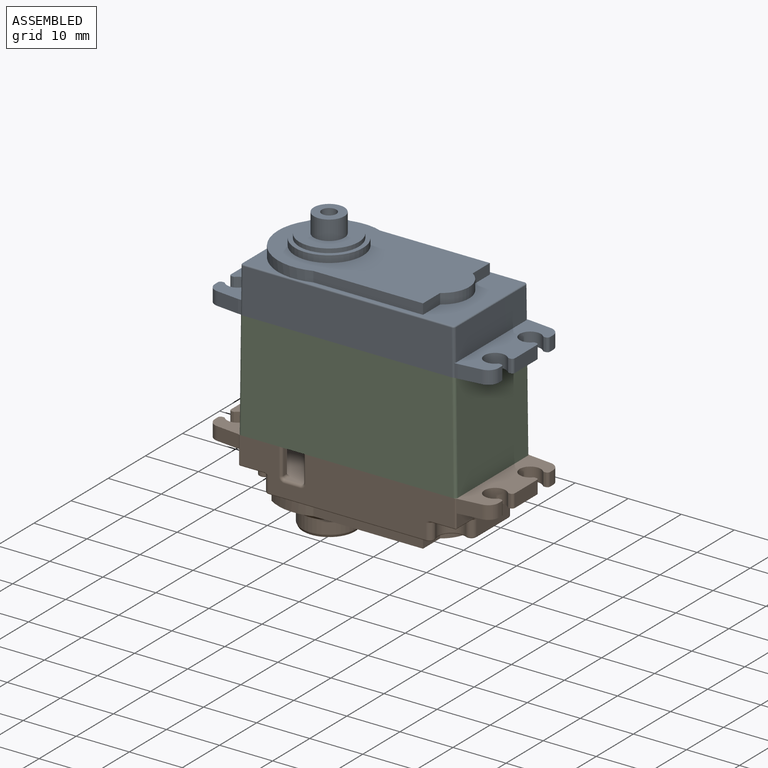
[diagram: assembled view]
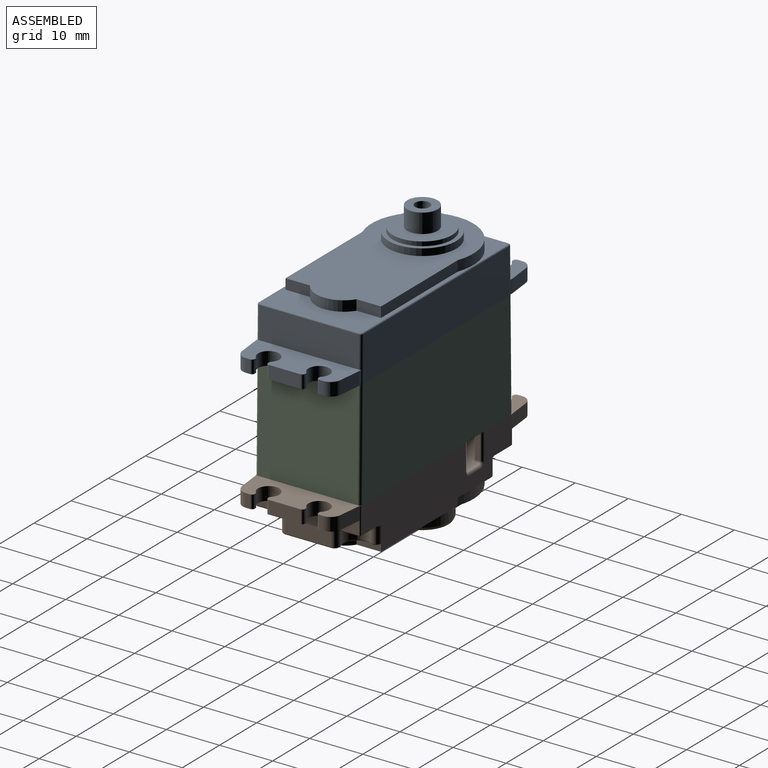
[diagram: assembled view, second angle]
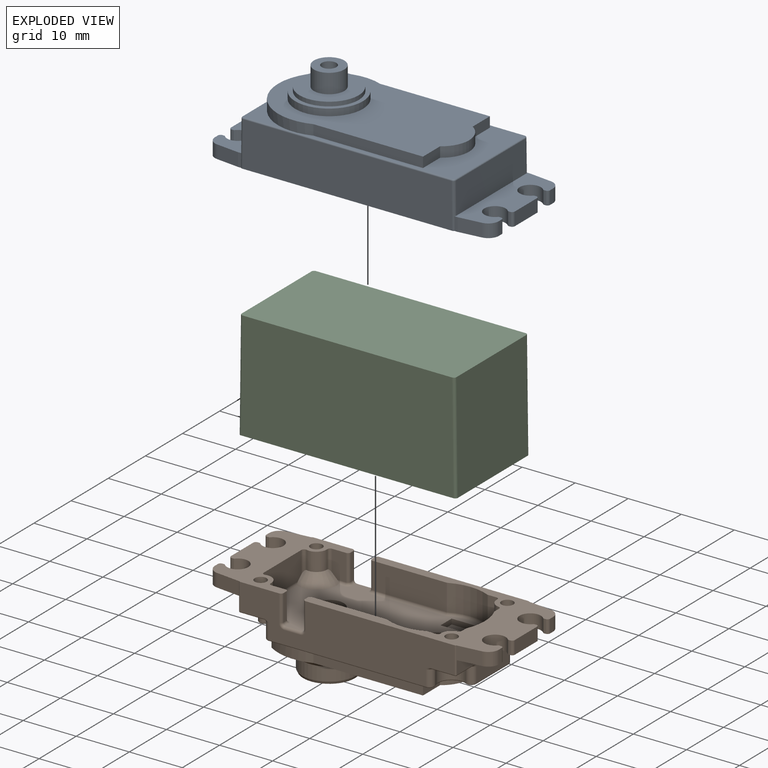
[diagram: exploded view]
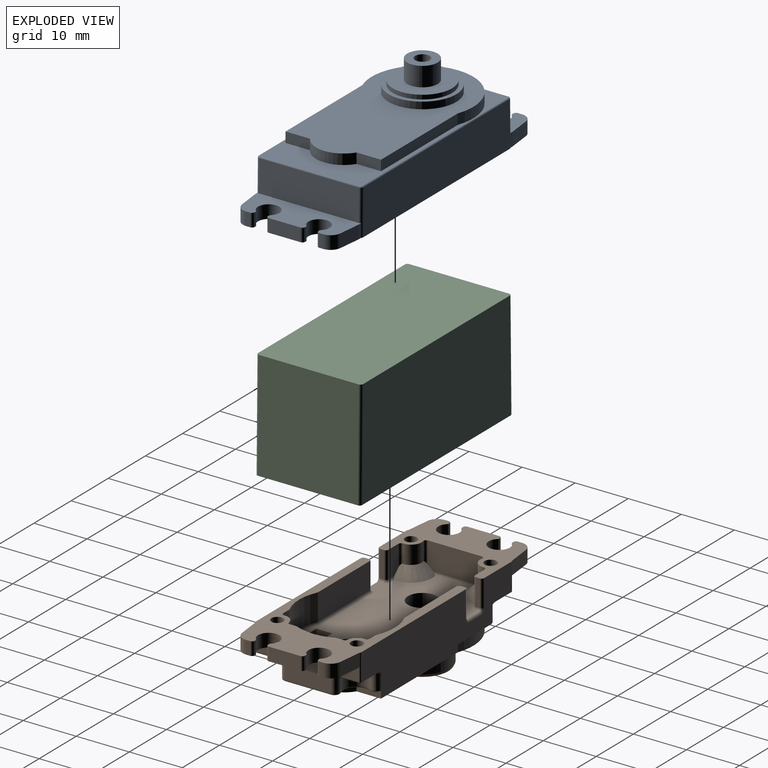
[diagram: exploded view, second angle]
ASSEMBLY  parts=3 mates=2
PART A: 83 faces, bbox 53.5x19.8x16.4 mm
  f0: plane 39.81x19.32mm, normal (0,0,1), area 173.8mm2, adj f54,f55,f56,f57,f58,f59,f73,f74
  f1: plane 18.8x5.95mm, normal (1,0,0.01), area 111.9mm2, adj f32,f69,f71,f79
  f2: plane 18.8x5.96mm, normal (-1,0,0.01), area 111.9mm2, adj f27,f70,f72,f74,f76,f78
  f3: plane 53.5x19.8mm, normal (0,0,-1), area 987.2mm2, adj f4,f5,f6,f7,f8,f9,f10,f11
  f4: plane 39.5x8.45mm, normal (0,-1,0), area 332.9mm2, adj f3,f71,f72,f75
  f5: plane 39.5x8.45mm, normal (0,1,0), area 332.9mm2, adj f3,f69,f70,f82
  f6: plane 4.28x2.5mm, normal (-0.11,-0.99,0), area 10.8mm2, adj f3,f7,f27,f28
  f7: cylinder r=2mm len=2.5mm, axis (0,0,-1), area 7.3mm2, adj f3,f6,f8,f27
  f8: plane 2.5x0.78mm, normal (-1,0,0), area 1.9mm2, adj f3,f7,f9,f27
  f9: cylinder r=0.5mm len=2.5mm, axis (0,0,-1), area 2mm2, adj f3,f8,f10,f27
  f10: plane 2.5x0.32mm, normal (0,1,0), area 0.8mm2, adj f3,f9,f11,f27
  f11: cylinder r=0.25mm len=2.5mm, axis (0,0,-1), area 0.5mm2, adj f3,f10,f12,f27
  f12: cylinder r=2mm len=4mm, axis (0,0,-1), area 24.1mm2, adj f3,f11,f13,f27
  f13: cylinder r=0.25mm len=2.5mm, axis (0,0,-1), area 0.5mm2, adj f3,f12,f14,f27
  f14: plane 2.5x0.32mm, normal (0,-1,0), area 0.8mm2, adj f3,f13,f15,f27
  f15: cylinder r=0.5mm len=2.5mm, axis (0,0,-1), area 2mm2, adj f3,f14,f16,f27
  f16: plane 6x2.5mm, normal (-1,0,0), area 15mm2, adj f3,f15,f17,f27
  f17: cylinder r=0.5mm len=2.5mm, axis (0,0,-1), area 2mm2, adj f3,f16,f18,f27
  f18: plane 2.5x0.32mm, normal (0,1,0), area 0.8mm2, adj f3,f17,f19,f27
  f19: cylinder r=0.25mm len=2.5mm, axis (0,0,-1), area 0.5mm2, adj f3,f18,f20,f27
  f20: cylinder r=2mm len=4mm, axis (0,0,-1), area 24.1mm2, adj f3,f19,f21,f27
  f21: cylinder r=0.25mm len=2.5mm, axis (0,0,-1), area 0.5mm2, adj f3,f20,f22,f27
  f22: plane 2.5x0.32mm, normal (0,-1,0), area 0.8mm2, adj f3,f21,f23,f27
  f23: cylinder r=0.5mm len=2.5mm, axis (0,0,-1), area 2mm2, adj f3,f22,f24,f27
  f24: plane 2.5x0.78mm, normal (-1,0,0), area 1.9mm2, adj f3,f23,f25,f27
  f25: cylinder r=2mm len=2.5mm, axis (0,0,-1), area 7.3mm2, adj f3,f24,f26,f27
  f26: plane 4.28x2.5mm, normal (-0.11,0.99,0), area 10.8mm2, adj f3,f25,f27,f29
  f27: plane 19.5x6.67mm, normal (0,0,1), area 93.3mm2, adj f2,f6,f7,f8,f9,f10,f11,f12
  f28: plane 2.5x0.62mm, normal (0,-1,0), area 1.5mm2, adj f3,f6,f27,f72
  f29: plane 2.5x0.62mm, normal (0,1,0), area 1.5mm2, adj f3,f26,f27,f70
  f30: plane 2.5x0.62mm, normal (0,1,0), area 1.5mm2, adj f3,f32,f49,f69
  f31: plane 2.5x0.62mm, normal (0,-1,0), area 1.5mm2, adj f3,f32,f50,f71
  f32: plane 19.5x6.67mm, normal (0,0,1), area 93.3mm2, adj f1,f30,f31,f33,f34,f35,f36,f37
  f33: plane 2.5x0.32mm, normal (0,1,0), area 0.8mm2, adj f3,f32,f34,f53
  f34: cylinder r=0.25mm len=2.5mm, axis (0,0,-1), area 0.5mm2, adj f3,f32,f33,f35
  f35: cylinder r=2mm len=4mm, axis (0,0,-1), area 24.1mm2, adj f3,f32,f34,f36
  f36: cylinder r=0.25mm len=2.5mm, axis (0,0,-1), area 0.5mm2, adj f3,f32,f35,f37
  f37: plane 2.5x0.32mm, normal (0,-1,0), area 0.8mm2, adj f3,f32,f36,f38
  f38: cylinder r=0.5mm len=2.5mm, axis (0,0,-1), area 2mm2, adj f3,f32,f37,f39
  f39: plane 6x2.5mm, normal (1,0,0), area 15mm2, adj f3,f32,f38,f40
  f40: cylinder r=0.5mm len=2.5mm, axis (0,0,-1), area 2mm2, adj f3,f32,f39,f41
  f41: plane 2.5x0.32mm, normal (0,1,0), area 0.8mm2, adj f3,f32,f40,f42
  f42: cylinder r=0.25mm len=2.5mm, axis (0,0,-1), area 0.5mm2, adj f3,f32,f41,f43
  f43: cylinder r=2mm len=4mm, axis (0,0,-1), area 24.1mm2, adj f3,f32,f42,f44
  f44: cylinder r=0.25mm len=2.5mm, axis (0,0,-1), area 0.5mm2, adj f3,f32,f43,f45
  f45: plane 2.5x0.32mm, normal (0,-1,0), area 0.8mm2, adj f3,f32,f44,f46
  f46: cylinder r=0.5mm len=2.5mm, axis (0,0,-1), area 2mm2, adj f3,f32,f45,f47
  f47: plane 2.5x0.78mm, normal (1,0,0), area 1.9mm2, adj f3,f32,f46,f48
  f48: cylinder r=2mm len=2.5mm, axis (0,0,-1), area 7.3mm2, adj f3,f32,f47,f49
  f49: plane 4.28x2.5mm, normal (0.11,0.99,0), area 10.8mm2, adj f3,f30,f32,f48
  f50: plane 4.28x2.5mm, normal (0.11,-0.99,0), area 10.8mm2, adj f3,f31,f32,f51
  f51: cylinder r=2mm len=2.5mm, axis (0,0,-1), area 7.3mm2, adj f3,f32,f50,f52
  f52: plane 2.5x0.78mm, normal (1,0,0), area 1.9mm2, adj f3,f32,f51,f53
  f53: cylinder r=0.5mm len=2.5mm, axis (0,0,-1), area 2mm2, adj f3,f32,f33,f52
  f54: plane 4.62x1.95mm, normal (1,0,0), area 9mm2, adj f0,f55,f59,f60
  f55: cylinder r=5.2mm len=8.76mm, axis (0,0,-1), area 20.3mm2, adj f0,f54,f56,f60
  f56: plane 4.62x1.95mm, normal (1,0,0), area 9mm2, adj f0,f55,f57,f60
  f57: plane 20.66x1.95mm, normal (0,1,0), area 40.3mm2, adj f0,f56,f58,f60
  f58: cylinder r=9.6mm len=19.2mm, axis (0,0,-1), area 72.1mm2, adj f0,f57,f59,f60,f76
  f59: plane 20.66x1.95mm, normal (0,-1,0), area 40.3mm2, adj f0,f54,f58,f60
  f60: plane 36x19.2mm, normal (0,0,1), area 465.6mm2, adj f54,f55,f56,f57,f58,f59,f61
  f61: cylinder r=6.4mm len=12.8mm, axis (0,0,-1), area 52.3mm2, adj f60,f62
  f62: plane 12.8x12.8mm, normal (0,0,1), area 30.2mm2, adj f61,f63
  f63: cylinder r=5.6mm len=11.2mm, axis (0,0,-1), area 28.1mm2, adj f62,f64
  f64: plane 11.2x11.2mm, normal (0,0,1), area 72.6mm2, adj f63,f65
  f65: cylinder r=2.88mm len=5.75mm, axis (0,0,-1), area 65.9mm2, adj f64,f66
  f66: plane 5.75x5.75mm, normal (0,0,1), area 20mm2, adj f65,f67
  f67: cylinder r=1.38mm len=5.75mm, axis (0,0,-1), area 49.7mm2, adj f66,f68
  f68: plane 2.75x2.75mm, normal (0,0,1), area 5.9mm2, adj f67
  f69: cylinder r=0.5mm len=8.46mm, axis (-0.01,0,1), area 5.7mm2, adj f1,f3,f5,f30,f32,f81
  f70: cylinder r=0.5mm len=8.46mm, axis (-0.01,0,-1), area 5.7mm2, adj f2,f3,f5,f27,f29,f80
  f71: cylinder r=0.5mm len=8.46mm, axis (0.01,0,-1), area 5.7mm2, adj f1,f3,f4,f31,f32,f77
  f72: cylinder r=0.5mm len=8.46mm, axis (0.01,0,1), area 5.7mm2, adj f2,f3,f4,f27,f28,f73
  f73: bspline ~0.5x0.5mm, area 0.3mm2, adj f0,f72,f74,f75
  f74: cylinder r=0.25mm len=8.39mm, axis (0,1,0), area 3.3mm2, adj f0,f2,f73,f76
  f75: cylinder r=0.25mm len=39.29mm, axis (1,0,0), area 15.4mm2, adj f0,f4,f73,f77
  f76: bspline ~2.02x0.25mm, area 0.7mm2, adj f2,f58,f74,f78
  f77: bspline ~0.5x0.5mm, area 0.3mm2, adj f0,f71,f75,f79
  f78: cylinder r=0.25mm len=8.39mm, axis (0,1,0), area 3.3mm2, adj f0,f2,f76,f80
  f79: cylinder r=0.25mm len=18.8mm, axis (0,1,0), area 7.3mm2, adj f0,f1,f77,f81
  f80: bspline ~0.5x0.5mm, area 0.3mm2, adj f0,f70,f78,f82
  f81: bspline ~0.5x0.5mm, area 0.3mm2, adj f0,f69,f79,f82
  f82: cylinder r=0.25mm len=39.29mm, axis (-1,0,0), area 15.4mm2, adj f0,f5,f80,f81
PART B: 232 faces, bbox 53.7x21.1x16.5 mm
  f0: plane 40.72x8.67mm, normal (0,-1,0), area 275.9mm2, adj f12,f16,f138,f140,f142,f143,f144,f168
  f1: plane 40.72x8.67mm, normal (0,1,0), area 275.9mm2, adj f12,f16,f119,f121,f123,f124,f125,f167
  f2: plane 35.79x19.3mm, normal (0,0,-1), area 101.7mm2, adj f5,f18,f19,f20,f21,f22,f23,f175
  f3: plane 19.52x6.17mm, normal (-1,0,0), area 79.1mm2, adj f52,f171,f172,f190,f193,f194,f196,f202
  f4: plane 19.52x6.17mm, normal (1,0,0), area 79.1mm2, adj f47,f173,f174,f181,f211,f212,f214,f220
  f5: cylinder r=9.6mm len=8.55mm, axis (0,0,1), area 17.4mm2, adj f2,f7,f19,f159,f187
  f6: cylinder r=9.6mm len=10.11mm, axis (0,0,1), area 20.8mm2, adj f7,f17,f159,f161,f188,f192
  f7: plane 36x19.2mm, normal (0,0,-1), area 436.5mm2, adj f5,f6,f18,f19,f20,f21,f22,f23
  f8: cylinder r=1.12mm len=5.3mm, axis (0,0,-1), area 37.5mm2, adj f12,f165
  f9: cylinder r=1.12mm len=5.3mm, axis (0,0,-1), area 37.5mm2, adj f12,f164
  f10: cylinder r=1.12mm len=5.3mm, axis (0,0,-1), area 37.5mm2, adj f16,f162
  f11: cylinder r=1.12mm len=5.3mm, axis (0,0,-1), area 37.5mm2, adj f16,f160
  f12: plane 35.1x19.8mm, normal (0,0,1), area 215.6mm2, adj f0,f1,f8,f9,f28,f29,f30,f31
  f13: plane 5.03x2.69mm, normal (0,-1,0), area 12.8mm2, adj f16,f106,f112,f113,f145
  f14: plane 5.03x2.69mm, normal (0,1,0), area 12.8mm2, adj f16,f103,f135,f136,f155
  f15: plane 37.13x18.8mm, normal (0,0,1), area 449.4mm2, adj f86,f88,f89,f90,f91,f93,f94,f95
  f16: plane 19.8x14.4mm, normal (0,0,1), area 145.5mm2, adj f0,f1,f10,f11,f13,f14,f50,f51
  f17: plane 10.18x1.6mm, normal (0,0,-1), area 7.4mm2, adj f6,f188,f189,f190,f191,f192
  f18: plane 4.62x1.95mm, normal (1,0,0), area 9mm2, adj f2,f7,f19,f23
  f19: plane 20.66x1.95mm, normal (0,-1,0), area 40.3mm2, adj f2,f5,f7,f18
  f20: cylinder r=9.6mm len=8.55mm, axis (0,0,1), area 17.4mm2, adj f2,f7,f21,f161,f175
  f21: plane 20.66x1.95mm, normal (0,1,0), area 40.3mm2, adj f2,f7,f20,f22
  f22: plane 4.62x1.95mm, normal (1,0,0), area 9mm2, adj f2,f7,f21,f23
  f23: cylinder r=5.2mm len=8.76mm, axis (0,0,1), area 20.3mm2, adj f2,f7,f18,f22
  f24: cylinder r=6.4mm len=12.8mm, axis (0,0,1), area 32.2mm2, adj f25,f231
  f25: plane 12.8x12.8mm, normal (0,0,-1), area 1mm2, adj f24,f230
  f26: cylinder r=5.12mm len=10.25mm, axis (0,0,1), area 82.1mm2, adj f229,f230
  f27: plane 9.75x9.75mm, normal (0,0,-1), area 50.9mm2, adj f98,f229
  f28: cylinder r=2mm len=2.5mm, axis (0,0,1), area 7.3mm2, adj f12,f29,f47,f48
  f29: plane 2.5x0.78mm, normal (1,0,0), area 1.9mm2, adj f12,f28,f30,f47
  f30: cylinder r=0.5mm len=2.5mm, axis (0,0,1), area 2mm2, adj f12,f29,f31,f47
  f31: plane 2.5x0.32mm, normal (0,1,0), area 0.8mm2, adj f12,f30,f32,f47
  f32: cylinder r=0.25mm len=2.5mm, axis (0,0,1), area 0.5mm2, adj f12,f31,f33,f47
  f33: cylinder r=2mm len=4mm, axis (0,0,1), area 24.1mm2, adj f12,f32,f34,f47
  f34: cylinder r=0.25mm len=2.5mm, axis (0,0,1), area 0.5mm2, adj f12,f33,f35,f47
  f35: plane 2.5x0.32mm, normal (0,-1,0), area 0.8mm2, adj f12,f34,f36,f47
  f36: cylinder r=0.5mm len=2.5mm, axis (0,0,1), area 2mm2, adj f12,f35,f37,f47
  f37: plane 6x2.5mm, normal (1,0,0), area 15mm2, adj f12,f36,f38,f47
  f38: cylinder r=0.5mm len=2.5mm, axis (0,0,1), area 2mm2, adj f12,f37,f39,f47
  f39: plane 2.5x0.32mm, normal (0,1,0), area 0.8mm2, adj f12,f38,f40,f47
  f40: cylinder r=0.25mm len=2.5mm, axis (0,0,1), area 0.5mm2, adj f12,f39,f41,f47
  f41: cylinder r=2mm len=4mm, axis (0,0,1), area 24.1mm2, adj f12,f40,f42,f47
  f42: cylinder r=0.25mm len=2.5mm, axis (0,0,1), area 0.5mm2, adj f12,f41,f43,f47
  f43: plane 2.5x0.32mm, normal (0,-1,0), area 0.8mm2, adj f12,f42,f44,f47
  f44: cylinder r=0.5mm len=2.5mm, axis (0,0,1), area 2mm2, adj f12,f43,f45,f47
  f45: plane 2.5x0.78mm, normal (1,0,0), area 1.9mm2, adj f12,f44,f46,f47
  f46: cylinder r=2mm len=2.5mm, axis (0,0,1), area 7.3mm2, adj f12,f45,f47,f49
  f47: plane 19.55x6.28mm, normal (0,0,-1), area 87.8mm2, adj f4,f28,f29,f30,f31,f32,f33,f34
  f48: plane 4.51x2.5mm, normal (0.11,-0.99,0), area 11.3mm2, adj f12,f28,f47,f211
  f49: plane 4.51x2.5mm, normal (0.11,0.99,0), area 11.3mm2, adj f12,f46,f47,f220
  f50: plane 4.51x2.5mm, normal (-0.11,-0.99,0), area 11.3mm2, adj f16,f52,f53,f202
  f51: plane 4.51x2.5mm, normal (-0.11,0.99,0), area 11.3mm2, adj f16,f52,f71,f193
  f52: plane 19.55x6.28mm, normal (0,0,-1), area 87.8mm2, adj f3,f50,f51,f53,f54,f55,f56,f57
  f53: cylinder r=2mm len=2.5mm, axis (0,0,1), area 7.3mm2, adj f16,f50,f52,f54
  f54: plane 2.5x0.78mm, normal (-1,0,0), area 1.9mm2, adj f16,f52,f53,f55
  f55: cylinder r=0.5mm len=2.5mm, axis (0,0,1), area 2mm2, adj f16,f52,f54,f56
  f56: plane 2.5x0.32mm, normal (0,1,0), area 0.8mm2, adj f16,f52,f55,f57
  f57: cylinder r=0.25mm len=2.5mm, axis (0,0,1), area 0.5mm2, adj f16,f52,f56,f58
  f58: cylinder r=2mm len=4mm, axis (0,0,1), area 24.1mm2, adj f16,f52,f57,f59
  f59: cylinder r=0.25mm len=2.5mm, axis (0,0,1), area 0.5mm2, adj f16,f52,f58,f60
  f60: plane 2.5x0.32mm, normal (0,-1,0), area 0.8mm2, adj f16,f52,f59,f61
  f61: cylinder r=0.5mm len=2.5mm, axis (0,0,1), area 2mm2, adj f16,f52,f60,f62
  f62: plane 6x2.5mm, normal (-1,0,0), area 15mm2, adj f16,f52,f61,f63
  f63: cylinder r=0.5mm len=2.5mm, axis (0,0,1), area 2mm2, adj f16,f52,f62,f64
  f64: plane 2.5x0.32mm, normal (0,1,0), area 0.8mm2, adj f16,f52,f63,f65
  f65: cylinder r=0.25mm len=2.5mm, axis (0,0,1), area 0.5mm2, adj f16,f52,f64,f66
  f66: cylinder r=2mm len=4mm, axis (0,0,1), area 24.1mm2, adj f16,f52,f65,f67
  f67: cylinder r=0.25mm len=2.5mm, axis (0,0,1), area 0.5mm2, adj f16,f52,f66,f68
  f68: plane 2.5x0.32mm, normal (0,-1,0), area 0.8mm2, adj f16,f52,f67,f69
  f69: cylinder r=0.5mm len=2.5mm, axis (0,0,1), area 2mm2, adj f16,f52,f68,f70
  f70: plane 2.5x0.78mm, normal (-1,0,0), area 1.9mm2, adj f16,f52,f69,f71
  f71: cylinder r=2mm len=2.5mm, axis (0,0,1), area 7.3mm2, adj f16,f51,f52,f70
  f72: cylinder r=2mm len=3.45mm, axis (0,0,1), area 10.4mm2, adj f12,f105,f146,f147
  f73: plane 5.03x1.61mm, normal (0,-1,0), area 7.4mm2, adj f12,f105,f107,f108,f147
  f74: cylinder r=9mm len=7.44mm, axis (0,0,1), area 38.4mm2, adj f12,f107,f110,f111
  f75: plane 13.92x5mm, normal (0,-1,0), area 69.6mm2, adj f12,f110,f116,f117
  f76: cylinder r=2mm len=3.45mm, axis (0,0,1), area 13mm2, adj f16,f106,f145,f152
  f77: plane 10.21x5.05mm, normal (1,0,0), area 50mm2, adj f16,f103,f106,f152,f153,f154
  f78: cylinder r=2mm len=3.45mm, axis (0,0,1), area 13mm2, adj f16,f103,f154,f155
  f79: plane 13.92x5mm, normal (0,1,0), area 69.6mm2, adj f12,f130,f132,f133
  f80: cylinder r=9mm len=7.44mm, axis (0,0,1), area 38.4mm2, adj f12,f127,f129,f130
  f81: plane 5.03x1.61mm, normal (0,1,0), area 7.4mm2, adj f12,f104,f126,f127,f150
  f82: cylinder r=2mm len=3.45mm, axis (0,0,1), area 10.4mm2, adj f12,f104,f150,f151
  f83: plane 5.05x1.16mm, normal (-1,0,0), area 5.2mm2, adj f12,f104,f148,f151,f158
  f84: cylinder r=9mm len=7.34mm, axis (0,0,1), area 37.8mm2, adj f12,f148,f149,f157
  f85: plane 5.05x1.16mm, normal (-1,0,0), area 5.2mm2, adj f12,f105,f146,f149,f156
  f86: cylinder r=2.5mm len=5mm, axis (0,0,1), area 15.7mm2, adj f15,f87
  f87: plane 5x5mm, normal (0,0,1), area 19.6mm2, adj f86
  f88: plane 5x1mm, normal (0,-1,0), area 5mm2, adj f15,f89,f91,f92
  f89: plane 3x1mm, normal (1,0,0), area 3mm2, adj f15,f88,f90,f92
  f90: plane 5x1mm, normal (0,1,0), area 5mm2, adj f15,f89,f91,f92
  f91: plane 3x1mm, normal (-1,0,0), area 3mm2, adj f15,f88,f90,f92
  f92: plane 5x3mm, normal (0,0,1), area 15mm2, adj f88,f89,f90,f91
  f93: plane 5x1mm, normal (0,-1,0), area 5mm2, adj f15,f94,f96,f97
  f94: plane 3x1mm, normal (1,0,0), area 3mm2, adj f15,f93,f95,f97
  f95: plane 5x1mm, normal (0,1,0), area 5mm2, adj f15,f94,f96,f97
  f96: plane 3x1mm, normal (-1,0,0), area 3mm2, adj f15,f93,f95,f97
  f97: plane 5x3mm, normal (0,0,1), area 15mm2, adj f93,f94,f95,f96
  f98: cylinder r=2.75mm len=10.75mm, axis (0,0,1), area 185.7mm2, adj f15,f27
  f99: plane 5x0.75mm, normal (-1,0,0), area 3.8mm2, adj f12,f133,f137,f138
  f100: plane 5x0.75mm, normal (1,0,0), area 3.8mm2, adj f16,f135,f141,f144
  f101: plane 5x0.75mm, normal (1,0,0), area 3.8mm2, adj f16,f113,f118,f119
  f102: plane 5x0.75mm, normal (-1,0,0), area 3.8mm2, adj f12,f116,f122,f125
  f103: cone r=2mm half-angle=45deg, axis (0,0,-1), area 18.5mm2, adj f14,f15,f77,f78,f136,f153,f154,f155
  f104: cone r=2mm half-angle=45deg, axis (0,0,-1), area 15.8mm2, adj f15,f81,f82,f83,f126,f150,f151,f157
  f105: cone r=2mm half-angle=45deg, axis (0,0,-1), area 15.8mm2, adj f15,f72,f73,f85,f108,f146,f147,f156
  f106: cone r=2mm half-angle=45deg, axis (0,0,-1), area 18.5mm2, adj f13,f15,f76,f77,f112,f145,f152,f153
  f107: cylinder r=0.5mm len=5mm, axis (0,0,1), area 1.1mm2, adj f12,f73,f74,f109
  f108: cylinder r=0.5mm len=0.58mm, axis (-1,0,0), area 0.2mm2, adj f15,f73,f105,f109
  f109: torus R=1mm, axis (0,0,1), area 0.2mm2, adj f15,f107,f108,f111
  f110: cylinder r=0.5mm len=5mm, axis (0,0,1), area 1.1mm2, adj f12,f74,f75,f114
  f111: torus R=8.5mm, axis (0,0,1), area 5.9mm2, adj f15,f74,f109,f114
  f112: cylinder r=0.5mm len=1.66mm, axis (-1,0,0), area 1.1mm2, adj f13,f15,f106,f115
  f113: cylinder r=0.5mm len=5mm, axis (0,0,1), area 3.9mm2, adj f13,f16,f101,f115
  f114: torus R=1mm, axis (0,0,1), area 0.2mm2, adj f15,f110,f111,f117
  f115: torus R=1mm, axis (0,0,1), area 0.8mm2, adj f15,f112,f113,f118
  f116: cylinder r=0.5mm len=5mm, axis (0,0,-1), area 3.9mm2, adj f12,f75,f102,f120
  f117: cylinder r=0.5mm len=13.92mm, axis (-1,0,0), area 10.9mm2, adj f15,f75,f114,f120
  f118: cylinder r=0.5mm len=0.75mm, axis (0,-1,0), area 0.6mm2, adj f15,f101,f115,f121
  f119: cylinder r=0.5mm len=5mm, axis (0,0,1), area 3.9mm2, adj f1,f16,f101,f121
  f120: torus R=1mm, axis (0,0,1), area 0.8mm2, adj f15,f116,f117,f122
  f121: torus R=1mm, axis (0,-1,0), area 0.8mm2, adj f1,f118,f119,f123
  f122: cylinder r=0.5mm len=0.75mm, axis (0,-1,0), area 0.6mm2, adj f15,f102,f120,f124
  f123: cylinder r=0.5mm len=3mm, axis (1,0,0), area 2.4mm2, adj f1,f15,f121,f124
  f124: torus R=1mm, axis (0,-1,0), area 0.8mm2, adj f1,f122,f123,f125
  f125: cylinder r=0.5mm len=5mm, axis (0,0,-1), area 3.9mm2, adj f1,f12,f102,f124
  f126: cylinder r=0.5mm len=0.58mm, axis (1,0,0), area 0.2mm2, adj f15,f81,f104,f128
  f127: cylinder r=0.5mm len=5mm, axis (0,0,1), area 1.1mm2, adj f12,f80,f81,f128
  f128: torus R=1mm, axis (0,0,1), area 0.2mm2, adj f15,f126,f127,f129
  f129: torus R=8.5mm, axis (0,0,1), area 5.9mm2, adj f15,f80,f128,f131
  f130: cylinder r=0.5mm len=5mm, axis (0,0,1), area 1.1mm2, adj f12,f79,f80,f131
  f131: torus R=1mm, axis (0,0,1), area 0.2mm2, adj f15,f129,f130,f132
  f132: cylinder r=0.5mm len=13.92mm, axis (1,0,0), area 10.9mm2, adj f15,f79,f131,f134
  f133: cylinder r=0.5mm len=5mm, axis (0,0,1), area 3.9mm2, adj f12,f79,f99,f134
  f134: torus R=1mm, axis (0,0,1), area 0.8mm2, adj f15,f132,f133,f137
  f135: cylinder r=0.5mm len=5mm, axis (0,0,-1), area 3.9mm2, adj f14,f16,f100,f139
  f136: cylinder r=0.5mm len=1.66mm, axis (1,0,0), area 1.1mm2, adj f14,f15,f103,f139
  f137: cylinder r=0.5mm len=0.75mm, axis (0,-1,0), area 0.6mm2, adj f15,f99,f134,f140
  f138: cylinder r=0.5mm len=5mm, axis (0,0,1), area 3.9mm2, adj f0,f12,f99,f140
  f139: torus R=1mm, axis (0,0,1), area 0.8mm2, adj f15,f135,f136,f141
  f140: torus R=1mm, axis (0,-1,0), area 0.8mm2, adj f0,f137,f138,f142
  f141: cylinder r=0.5mm len=0.75mm, axis (0,-1,0), area 0.6mm2, adj f15,f100,f139,f143
  f142: cylinder r=0.5mm len=3mm, axis (-1,0,0), area 2.4mm2, adj f0,f15,f140,f143
  f143: torus R=1mm, axis (0,-1,0), area 0.8mm2, adj f0,f141,f142,f144
  f144: cylinder r=0.5mm len=5mm, axis (0,0,-1), area 3.9mm2, adj f0,f16,f100,f143
  f145: cylinder r=0.5mm len=4.03mm, axis (0,0,1), area 3mm2, adj f13,f16,f76,f106
  f146: cylinder r=0.5mm len=3.94mm, axis (0,0,1), area 2.7mm2, adj f12,f72,f85,f105
  f147: cylinder r=0.5mm len=4.03mm, axis (0,0,1), area 3mm2, adj f12,f72,f73,f105
  f148: cylinder r=0.5mm len=5mm, axis (0,0,1), area 1mm2, adj f12,f83,f84,f158
  f149: cylinder r=0.5mm len=5mm, axis (0,0,1), area 1mm2, adj f12,f84,f85,f156
  f150: cylinder r=0.5mm len=4.03mm, axis (0,0,1), area 3mm2, adj f12,f81,f82,f104
  f151: cylinder r=0.5mm len=3.94mm, axis (0,0,1), area 2.7mm2, adj f12,f82,f83,f104
  f152: cylinder r=0.5mm len=4.12mm, axis (0,0,1), area 3.5mm2, adj f16,f76,f77,f106
  f153: cylinder r=0.5mm len=8.27mm, axis (0,-1,0), area 6mm2, adj f15,f77,f103,f106
  f154: cylinder r=0.5mm len=4.12mm, axis (0,0,1), area 3.5mm2, adj f16,f77,f78,f103
  f155: cylinder r=0.5mm len=4.03mm, axis (0,0,1), area 3mm2, adj f14,f16,f78,f103
  f156: torus R=1mm, axis (0,0,1), area 0.1mm2, adj f85,f105,f149,f157
  f157: torus R=8.5mm, axis (0,0,1), area 5.8mm2, adj f15,f84,f104,f105,f156,f158
  f158: torus R=1mm, axis (0,0,1), area 0.1mm2, adj f83,f104,f148,f157
  f159: cylinder r=2.5mm len=5.1mm, axis (0,0,-1), area 28.6mm2, adj f5,f6,f7,f169,f172,f187,f192,f209
  f160: plane 4.5x4.4mm, normal (0,0,-1), area 14mm2, adj f11,f203,f206,f207,f209,f210
  f161: cylinder r=2.5mm len=5.1mm, axis (0,0,-1), area 28.6mm2, adj f6,f7,f20,f170,f171,f175,f188,f200
  f162: plane 4.5x4.4mm, normal (0,0,-1), area 14mm2, adj f10,f194,f197,f198,f200,f201
  f163: cylinder r=2.5mm len=3.57mm, axis (0,0,-1), area 17.6mm2, adj f167,f173,f179,f227
  f164: plane 4.5x4.4mm, normal (0,0,-1), area 14mm2, adj f9,f221,f224,f225,f227,f228
  f165: plane 4.5x4.4mm, normal (0,0,-1), area 14mm2, adj f8,f212,f215,f216,f218,f219
  f166: cylinder r=2.5mm len=3.57mm, axis (0,0,-1), area 17.6mm2, adj f168,f174,f183,f218
  f167: cylinder r=1mm len=2.9mm, axis (0,0,-1), area 5.7mm2, adj f1,f163,f178,f225
  f168: cylinder r=1mm len=2.9mm, axis (0,0,-1), area 5.7mm2, adj f0,f166,f184,f219
  f169: cylinder r=1mm len=2.9mm, axis (0,0,-1), area 5.7mm2, adj f0,f159,f186,f207
  f170: cylinder r=1mm len=2.9mm, axis (0,0,-1), area 5.7mm2, adj f1,f161,f176,f201
  f171: cylinder r=1mm len=2.9mm, axis (0,0,-1), area 5.8mm2, adj f3,f161,f189,f198
  f172: cylinder r=1mm len=2.9mm, axis (0,0,-1), area 5.8mm2, adj f3,f159,f191,f210
  f173: cylinder r=1mm len=2.9mm, axis (0,0,-1), area 5.8mm2, adj f4,f163,f180,f228
  f174: cylinder r=1mm len=2.9mm, axis (0,0,-1), area 5.8mm2, adj f4,f166,f182,f216
  f175: torus R=2.75mm, axis (0,0,1), area 0.2mm2, adj f2,f20,f161,f176
  f176: torus R=0.75mm, axis (0,0,1), area 0.7mm2, adj f2,f170,f175,f177
  f177: cylinder r=0.25mm len=29.58mm, axis (1,0,0), area 11.6mm2, adj f1,f2,f176,f178
  f178: torus R=0.75mm, axis (0,0,1), area 0.7mm2, adj f2,f167,f177,f179
  f179: torus R=2.75mm, axis (0,0,1), area 2.5mm2, adj f2,f163,f178,f180
  f180: torus R=0.75mm, axis (0,0,1), area 0.7mm2, adj f2,f173,f179,f181
  f181: cylinder r=0.25mm len=8.68mm, axis (0,1,0), area 3.4mm2, adj f2,f4,f180,f182
  f182: torus R=0.75mm, axis (0,0,1), area 0.7mm2, adj f2,f174,f181,f183
  f183: torus R=2.75mm, axis (0,0,1), area 2.5mm2, adj f2,f166,f182,f184
  f184: torus R=0.75mm, axis (0,0,1), area 0.7mm2, adj f2,f168,f183,f185
  f185: cylinder r=0.25mm len=29.58mm, axis (-1,0,0), area 11.6mm2, adj f0,f2,f184,f186
  f186: torus R=0.75mm, axis (0,0,1), area 0.7mm2, adj f2,f169,f185,f187
  f187: torus R=2.75mm, axis (0,0,1), area 0.2mm2, adj f2,f5,f159,f186
  f188: torus R=2.75mm, axis (0,0,1), area 0.2mm2, adj f6,f17,f161,f189
  f189: torus R=0.75mm, axis (0,0,1), area 0.7mm2, adj f17,f171,f188,f190
  f190: cylinder r=0.25mm len=8.68mm, axis (0,1,0), area 3.4mm2, adj f3,f17,f189,f191
  f191: torus R=0.75mm, axis (0,0,1), area 0.7mm2, adj f17,f172,f190,f192
  f192: torus R=2.75mm, axis (0,0,1), area 0.2mm2, adj f6,f17,f159,f191
  f193: cylinder r=0.25mm len=5.05mm, axis (0,0,-1), area 1.7mm2, adj f1,f3,f16,f51,f52,f195
  f194: cylinder r=0.25mm len=4.31mm, axis (0,-1,0), area 1.7mm2, adj f3,f162,f195,f196
  f195: sphere r=0.25mm, area 0.1mm2, adj f193,f194,f197
  f196: bspline ~1.17x0.5mm, area 0.1mm2, adj f3,f194,f198
  f197: cylinder r=0.25mm len=4.46mm, axis (-1,0,0), area 1.8mm2, adj f1,f162,f195,f199
  f198: torus R=1.25mm, axis (0,0,-1), area 0.7mm2, adj f162,f171,f196,f200
  f199: bspline ~1.17x0.5mm, area 0.1mm2, adj f1,f197,f201
  f200: torus R=2.25mm, axis (0,0,-1), area 2.3mm2, adj f161,f162,f198,f201
  f201: torus R=1.25mm, axis (0,0,-1), area 0.6mm2, adj f162,f170,f199,f200
  f202: cylinder r=0.25mm len=5.05mm, axis (0,0,1), area 1.7mm2, adj f0,f3,f16,f50,f52,f204
  f203: cylinder r=0.25mm len=4.46mm, axis (1,0,0), area 1.8mm2, adj f0,f160,f204,f205
  f204: sphere r=0.25mm, area 0.1mm2, adj f202,f203,f206
  f205: bspline ~1.17x0.5mm, area 0.1mm2, adj f0,f203,f207
  f206: cylinder r=0.25mm len=4.31mm, axis (0,-1,0), area 1.7mm2, adj f3,f160,f204,f208
  f207: torus R=1.25mm, axis (0,0,-1), area 0.6mm2, adj f160,f169,f205,f209
  f208: bspline ~1.17x0.5mm, area 0.1mm2, adj f3,f206,f210
  f209: torus R=2.25mm, axis (0,0,-1), area 2.3mm2, adj f159,f160,f207,f210
  f210: torus R=1.25mm, axis (0,0,-1), area 0.7mm2, adj f160,f172,f208,f209
  f211: cylinder r=0.25mm len=5.05mm, axis (0,0,-1), area 1.7mm2, adj f0,f4,f12,f47,f48,f213
  f212: cylinder r=0.25mm len=4.31mm, axis (0,-1,0), area 1.7mm2, adj f4,f165,f213,f214
  f213: sphere r=0.25mm, area 0.1mm2, adj f211,f212,f215
  f214: bspline ~1.17x0.5mm, area 0.1mm2, adj f4,f212,f216
  f215: cylinder r=0.25mm len=4.46mm, axis (1,0,0), area 1.8mm2, adj f0,f165,f213,f217
  f216: torus R=1.25mm, axis (0,0,-1), area 0.7mm2, adj f165,f174,f214,f218
  f217: bspline ~1.17x0.5mm, area 0.1mm2, adj f0,f215,f219
  f218: torus R=2.25mm, axis (0,0,-1), area 2.3mm2, adj f165,f166,f216,f219
  f219: torus R=1.25mm, axis (0,0,-1), area 0.6mm2, adj f165,f168,f217,f218
  f220: cylinder r=0.25mm len=5.05mm, axis (0,0,1), area 1.7mm2, adj f1,f4,f12,f47,f49,f222
  f221: cylinder r=0.25mm len=4.46mm, axis (-1,0,0), area 1.8mm2, adj f1,f164,f222,f223
  f222: sphere r=0.25mm, area 0.1mm2, adj f220,f221,f224
  f223: bspline ~1.17x0.5mm, area 0.1mm2, adj f1,f221,f225
  f224: cylinder r=0.25mm len=4.31mm, axis (0,-1,0), area 1.7mm2, adj f4,f164,f222,f226
  f225: torus R=1.25mm, axis (0,0,-1), area 0.6mm2, adj f164,f167,f223,f227
  f226: bspline ~1.17x0.5mm, area 0.1mm2, adj f4,f224,f228
  f227: torus R=2.25mm, axis (0,0,-1), area 2.3mm2, adj f163,f164,f225,f228
  f228: torus R=1.25mm, axis (0,0,-1), area 0.7mm2, adj f164,f173,f226,f227
  f229: cone r=4.88mm half-angle=26.6deg, axis (0,0,1), area 17.6mm2, adj f26,f27
  f230: cone r=5.12mm half-angle=45deg, axis (0,0,1), area 63.9mm2, adj f25,f26
  f231: torus R=6.9mm, axis (0,0,-1), area 32.5mm2, adj f7,f24
PART C: 10 faces, bbox 41x19.8x20.5 mm
  f0: plane 40.5x19.8mm, normal (0,0,1), area 801.7mm2, adj f1,f3,f4,f5,f6,f7,f8,f9
  f1: plane 20.5x18.8mm, normal (-1,0,0.01), area 385.4mm2, adj f0,f2,f6,f8
  f2: plane 41x19.8mm, normal (0,0,-1), area 811.6mm2, adj f1,f3,f4,f5,f6,f7,f8,f9
  f3: plane 20.5x18.8mm, normal (1,0,0.01), area 385.4mm2, adj f0,f2,f7,f9
  f4: plane 40x20.5mm, normal (0,-1,0), area 814.9mm2, adj f0,f2,f8,f9
  f5: plane 40x20.5mm, normal (0,1,0), area 814.9mm2, adj f0,f2,f6,f7
  f6: cylinder r=0.5mm len=20.51mm, axis (-0.01,0,-1), area 16.1mm2, adj f0,f1,f2,f5
  f7: cylinder r=0.5mm len=20.51mm, axis (-0.01,0,1), area 16.1mm2, adj f0,f2,f3,f5
  f8: cylinder r=0.5mm len=20.51mm, axis (0.01,0,1), area 16.1mm2, adj f0,f1,f2,f4
  f9: cylinder r=0.5mm len=20.51mm, axis (0.01,0,-1), area 16.1mm2, adj f0,f2,f3,f4
PLACE A at identity
PLACE B at identity
PLACE C at identity fixed
MATE fastened B.f12 <-> C.f2  axis (0,0,-1) through (0,0,-20.5)mm
MATE fastened C.f0 <-> A.f3  axis (0,0,1) through (0,0,0)mm
